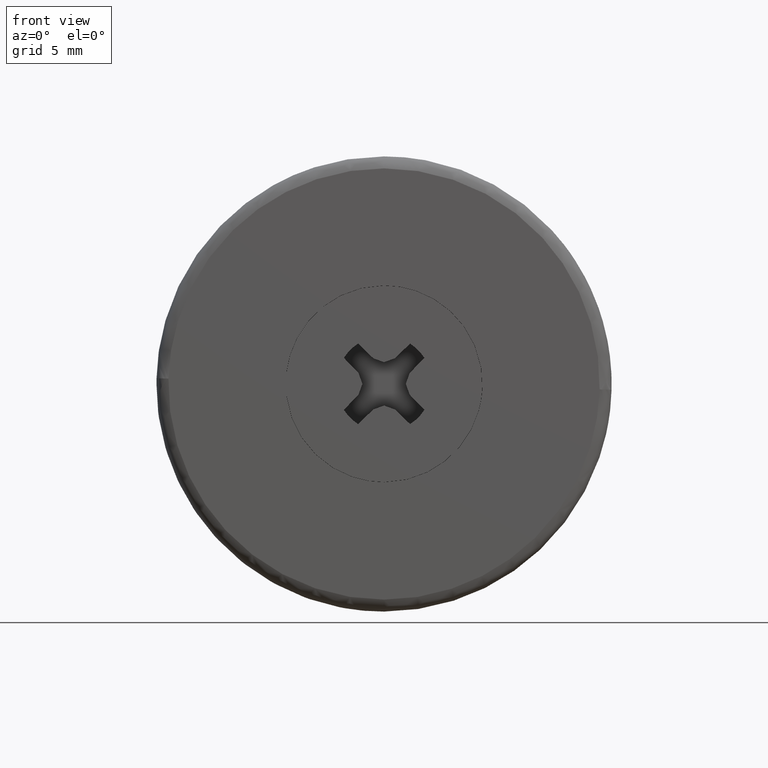
[diagram: clean part render]
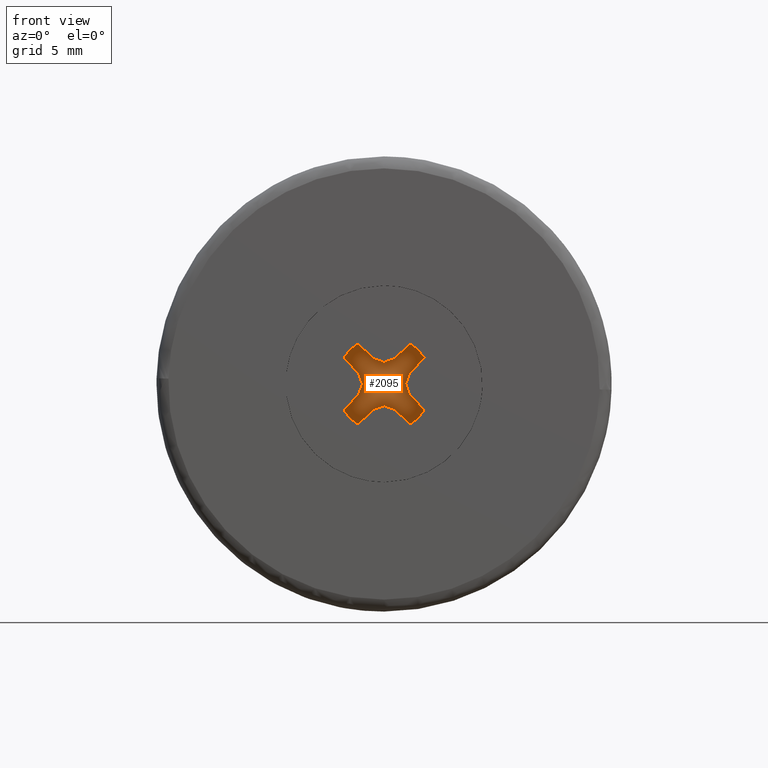
[diagram: same view with one face highlighted and labeled with its STEP entity id]
A machine part, front view. The second image highlights one B-rep face of the part: STEP entity #2095.
In plain terms, the highlighted face is a freeform B-spline surface patch.
Its self-contained STEP definition (entity closure, byte-faithful):
#1916=CARTESIAN_POINT('',(-1.847461802376596,2.0,1.847461802376596));
#1917=CARTESIAN_POINT('',(1.847461862446041,2.0,1.847461802376596));
#1918=CARTESIAN_POINT('',(-1.847461802376596,2.0,-1.847461862446041));
#1919=CARTESIAN_POINT('',(1.847461862446041,2.0,-1.847461862446041));
#1920=B_SPLINE_SURFACE_WITH_KNOTS('',1,1,((#1916,#1918),(#1917,#1919)),.UNSPECIFIED.,.F.,.F.,.U.,(2,2),(2,2),(0.0,3.694923664822637),(0.0,3.694923664822637),.UNSPECIFIED.);
#1921=CARTESIAN_POINT('',(0.904103999999983,2.0,0.0));
#1922=VERTEX_POINT('',#1921);
#1923=CARTESIAN_POINT('',(1.069166000000000,2.0,0.453505000000000));
#1924=VERTEX_POINT('',#1923);
#1925=CARTESIAN_POINT('',(0.904103999999983,2.0,0.0));
#1926=CARTESIAN_POINT('',(1.069166000000000,2.0,0.453505000000000));
#1927=QUASI_UNIFORM_CURVE('',1,(#1925,#1926),.UNSPECIFIED.,.F.,.U.);
#1928=EDGE_CURVE('',#1922,#1924,#1927,.T.);
#1929=ORIENTED_EDGE('',*,*,#1928,.T.);
#1930=CARTESIAN_POINT('',(1.679663000000000,2.0,1.085694000000000));
#1931=VERTEX_POINT('',#1930);
#1932=CARTESIAN_POINT('',(1.069166000000000,2.0,0.453505000000000));
#1933=CARTESIAN_POINT('',(1.679663000000000,2.0,1.085694000000000));
#1934=QUASI_UNIFORM_CURVE('',1,(#1932,#1933),.UNSPECIFIED.,.F.,.U.);
#1935=EDGE_CURVE('',#1924,#1931,#1934,.T.);
#1936=ORIENTED_EDGE('',*,*,#1935,.T.);
#1937=CARTESIAN_POINT('',(1.085693718975222,2.0,1.679663403357275));
#1938=VERTEX_POINT('',#1937);
#1939=CARTESIAN_POINT('',(1.679663000000000,2.0,1.085694000000000));
#1940=CARTESIAN_POINT('',(1.446467588217875,2.000000000000000,1.446467917271057));
#1941=CARTESIAN_POINT('',(1.085693718975223,2.0,1.679663403357277));
#1949=(BOUNDED_CURVE()B_SPLINE_CURVE(2,(#1939,#1940,#1941),.UNSPECIFIED.,.F.,.U.)CURVE()GEOMETRIC_REPRESENTATION_ITEM()QUASI_UNIFORM_CURVE()RATIONAL_B_SPLINE_CURVE((1.0,0.977701410688083,1.0))REPRESENTATION_ITEM(''));
#1950=EDGE_CURVE('',#1931,#1938,#1949,.T.);
#1951=ORIENTED_EDGE('',*,*,#1950,.T.);
#1952=CARTESIAN_POINT('',(0.453505000000000,2.0,1.069165999999980));
#1953=VERTEX_POINT('',#1952);
#1954=CARTESIAN_POINT('',(1.085693718975222,2.0,1.679663403357275));
#1955=CARTESIAN_POINT('',(0.453505000000000,2.0,1.069165999999980));
#1956=QUASI_UNIFORM_CURVE('',1,(#1954,#1955),.UNSPECIFIED.,.F.,.U.);
#1957=EDGE_CURVE('',#1938,#1953,#1956,.T.);
#1958=ORIENTED_EDGE('',*,*,#1957,.T.);
#1959=CARTESIAN_POINT('',(0.0,2.0,0.904104000000000));
#1960=VERTEX_POINT('',#1959);
#1961=CARTESIAN_POINT('',(0.453505000000000,2.0,1.069165999999980));
#1962=CARTESIAN_POINT('',(0.0,2.0,0.904104000000000));
#1963=QUASI_UNIFORM_CURVE('',1,(#1961,#1962),.UNSPECIFIED.,.F.,.U.);
#1964=EDGE_CURVE('',#1953,#1960,#1963,.T.);
#1965=ORIENTED_EDGE('',*,*,#1964,.T.);
#1966=CARTESIAN_POINT('',(-0.453505000000000,2.0,1.069165999999980));
#1967=VERTEX_POINT('',#1966);
#1968=CARTESIAN_POINT('',(0.0,2.0,0.904104000000000));
#1969=CARTESIAN_POINT('',(-0.453505000000000,2.0,1.069165999999980));
#1970=QUASI_UNIFORM_CURVE('',1,(#1968,#1969),.UNSPECIFIED.,.F.,.U.);
#1971=EDGE_CURVE('',#1960,#1967,#1970,.T.);
#1972=ORIENTED_EDGE('',*,*,#1971,.T.);
#1973=CARTESIAN_POINT('',(-1.085694000000018,2.0,1.679663000000000));
#1974=VERTEX_POINT('',#1973);
#1975=CARTESIAN_POINT('',(-0.453505000000000,2.0,1.069165999999980));
#1976=CARTESIAN_POINT('',(-1.085694000000018,2.0,1.679663000000000));
#1977=QUASI_UNIFORM_CURVE('',1,(#1975,#1976),.UNSPECIFIED.,.F.,.U.);
#1978=EDGE_CURVE('',#1967,#1974,#1977,.T.);
#1979=ORIENTED_EDGE('',*,*,#1978,.T.);
#1980=CARTESIAN_POINT('',(-1.679663403357275,2.0,1.085693718975222));
#1981=VERTEX_POINT('',#1980);
#1982=CARTESIAN_POINT('',(-1.085694000000018,2.0,1.679663000000000));
#1983=CARTESIAN_POINT('',(-1.446467917271062,2.000000000000000,1.446467588217868));
#1984=CARTESIAN_POINT('',(-1.679663403357277,2.0,1.085693718975223));
#1992=(BOUNDED_CURVE()B_SPLINE_CURVE(2,(#1982,#1983,#1984),.UNSPECIFIED.,.F.,.U.)CURVE()GEOMETRIC_REPRESENTATION_ITEM()QUASI_UNIFORM_CURVE()RATIONAL_B_SPLINE_CURVE((1.0,0.977701410688084,1.0))REPRESENTATION_ITEM(''));
#1993=EDGE_CURVE('',#1974,#1981,#1992,.T.);
#1994=ORIENTED_EDGE('',*,*,#1993,.T.);
#1995=CARTESIAN_POINT('',(-1.069166000000000,2.0,0.453505000000000));
#1996=VERTEX_POINT('',#1995);
#1997=CARTESIAN_POINT('',(-1.679663403357275,2.0,1.085693718975222));
#1998=CARTESIAN_POINT('',(-1.069166000000000,2.0,0.453505000000000));
#1999=QUASI_UNIFORM_CURVE('',1,(#1997,#1998),.UNSPECIFIED.,.F.,.U.);
#2000=EDGE_CURVE('',#1981,#1996,#1999,.T.);
#2001=ORIENTED_EDGE('',*,*,#2000,.T.);
#2002=CARTESIAN_POINT('',(-0.904104000000000,2.0,0.0));
#2003=VERTEX_POINT('',#2002);
#2004=CARTESIAN_POINT('',(-1.069166000000000,2.0,0.453505000000000));
#2005=CARTESIAN_POINT('',(-0.904104000000000,2.0,0.0));
#2006=QUASI_UNIFORM_CURVE('',1,(#2004,#2005),.UNSPECIFIED.,.F.,.U.);
#2007=EDGE_CURVE('',#1996,#2003,#2006,.T.);
#2008=ORIENTED_EDGE('',*,*,#2007,.T.);
#2009=CARTESIAN_POINT('',(-1.069166000000000,2.0,-0.453505000000000));
#2010=VERTEX_POINT('',#2009);
#2011=CARTESIAN_POINT('',(-0.904104000000000,2.0,0.0));
#2012=CARTESIAN_POINT('',(-1.069166000000000,2.0,-0.453505000000000));
#2013=QUASI_UNIFORM_CURVE('',1,(#2011,#2012),.UNSPECIFIED.,.F.,.U.);
#2014=EDGE_CURVE('',#2003,#2010,#2013,.T.);
#2015=ORIENTED_EDGE('',*,*,#2014,.T.);
#2016=CARTESIAN_POINT('',(-1.679663000000000,2.0,-1.085694000000000));
#2017=VERTEX_POINT('',#2016);
#2018=CARTESIAN_POINT('',(-1.069166000000000,2.0,-0.453505000000000));
#2019=CARTESIAN_POINT('',(-1.679663000000000,2.0,-1.085694000000000));
#2020=QUASI_UNIFORM_CURVE('',1,(#2018,#2019),.UNSPECIFIED.,.F.,.U.);
#2021=EDGE_CURVE('',#2010,#2017,#2020,.T.);
#2022=ORIENTED_EDGE('',*,*,#2021,.T.);
#2023=CARTESIAN_POINT('',(-1.085693718975222,2.0,-1.679663403357275));
#2024=VERTEX_POINT('',#2023);
#2025=CARTESIAN_POINT('',(-1.679663000000000,2.0,-1.085694000000000));
#2026=CARTESIAN_POINT('',(-1.446467588217875,2.0,-1.446467917271056));
#2027=CARTESIAN_POINT('',(-1.085693718975223,2.0,-1.679663403357276));
#2035=(BOUNDED_CURVE()B_SPLINE_CURVE(2,(#2025,#2026,#2027),.UNSPECIFIED.,.F.,.U.)CURVE()GEOMETRIC_REPRESENTATION_ITEM()QUASI_UNIFORM_CURVE()RATIONAL_B_SPLINE_CURVE((1.0,0.977701410688083,1.0))REPRESENTATION_ITEM(''));
#2036=EDGE_CURVE('',#2017,#2024,#2035,.T.);
#2037=ORIENTED_EDGE('',*,*,#2036,.T.);
#2038=CARTESIAN_POINT('',(-0.453505000000000,2.0,-1.069166000000000));
#2039=VERTEX_POINT('',#2038);
#2040=CARTESIAN_POINT('',(-1.085693718975222,2.0,-1.679663403357275));
#2041=CARTESIAN_POINT('',(-0.453505000000000,2.0,-1.069166000000000));
#2042=QUASI_UNIFORM_CURVE('',1,(#2040,#2041),.UNSPECIFIED.,.F.,.U.);
#2043=EDGE_CURVE('',#2024,#2039,#2042,.T.);
#2044=ORIENTED_EDGE('',*,*,#2043,.T.);
#2045=CARTESIAN_POINT('',(0.0,2.0,-0.904103999999990));
#2046=VERTEX_POINT('',#2045);
#2047=CARTESIAN_POINT('',(-0.453505000000000,2.0,-1.069166000000000));
#2048=CARTESIAN_POINT('',(0.0,2.0,-0.904103999999990));
#2049=QUASI_UNIFORM_CURVE('',1,(#2047,#2048),.UNSPECIFIED.,.F.,.U.);
#2050=EDGE_CURVE('',#2039,#2046,#2049,.T.);
#2051=ORIENTED_EDGE('',*,*,#2050,.T.);
#2052=CARTESIAN_POINT('',(0.453505000000000,2.0,-1.069166000000000));
#2053=VERTEX_POINT('',#2052);
#2054=CARTESIAN_POINT('',(0.0,2.0,-0.904103999999990));
#2055=CARTESIAN_POINT('',(0.453505000000000,2.0,-1.069166000000000));
#2056=QUASI_UNIFORM_CURVE('',1,(#2054,#2055),.UNSPECIFIED.,.F.,.U.);
#2057=EDGE_CURVE('',#2046,#2053,#2056,.T.);
#2058=ORIENTED_EDGE('',*,*,#2057,.T.);
#2059=CARTESIAN_POINT('',(1.085694000000000,2.0,-1.679663000000000));
#2060=VERTEX_POINT('',#2059);
#2061=CARTESIAN_POINT('',(0.453505000000000,2.0,-1.069166000000000));
#2062=CARTESIAN_POINT('',(1.085694000000000,2.0,-1.679663000000000));
#2063=QUASI_UNIFORM_CURVE('',1,(#2061,#2062),.UNSPECIFIED.,.F.,.U.);
#2064=EDGE_CURVE('',#2053,#2060,#2063,.T.);
#2065=ORIENTED_EDGE('',*,*,#2064,.T.);
#2066=CARTESIAN_POINT('',(1.679663403357275,2.0,-1.085693718975224));
#2067=VERTEX_POINT('',#2066);
#2068=CARTESIAN_POINT('',(1.085694000000000,2.0,-1.679663000000000));
#2069=CARTESIAN_POINT('',(1.446467917271056,2.0,-1.446467588217876));
#2070=CARTESIAN_POINT('',(1.679663403357276,2.0,-1.085693718975224));
#2078=(BOUNDED_CURVE()B_SPLINE_CURVE(2,(#2068,#2069,#2070),.UNSPECIFIED.,.F.,.U.)CURVE()GEOMETRIC_REPRESENTATION_ITEM()QUASI_UNIFORM_CURVE()RATIONAL_B_SPLINE_CURVE((1.0,0.977701410688083,1.0))REPRESENTATION_ITEM(''));
#2079=EDGE_CURVE('',#2060,#2067,#2078,.T.);
#2080=ORIENTED_EDGE('',*,*,#2079,.T.);
#2081=CARTESIAN_POINT('',(1.069166000000000,2.0,-0.453505000000000));
#2082=VERTEX_POINT('',#2081);
#2083=CARTESIAN_POINT('',(1.679663403357275,2.0,-1.085693718975224));
#2084=CARTESIAN_POINT('',(1.069166000000000,2.0,-0.453505000000000));
#2085=QUASI_UNIFORM_CURVE('',1,(#2083,#2084),.UNSPECIFIED.,.F.,.U.);
#2086=EDGE_CURVE('',#2067,#2082,#2085,.T.);
#2087=ORIENTED_EDGE('',*,*,#2086,.T.);
#2088=CARTESIAN_POINT('',(1.069166000000000,2.0,-0.453505000000000));
#2089=CARTESIAN_POINT('',(0.904103999999983,2.0,0.0));
#2090=QUASI_UNIFORM_CURVE('',1,(#2088,#2089),.UNSPECIFIED.,.F.,.U.);
#2091=EDGE_CURVE('',#2082,#1922,#2090,.T.);
#2092=ORIENTED_EDGE('',*,*,#2091,.T.);
#2093=EDGE_LOOP('',(#1929,#1936,#1951,#1958,#1965,#1972,#1979,#1994,#2001,#2008,#2015,#2022,#2037,#2044,#2051,#2058,#2065,#2080,#2087,#2092));
#2094=FACE_OUTER_BOUND('',#2093,.T.);
#2095=ADVANCED_FACE('',(#2094),#1920,.F.);